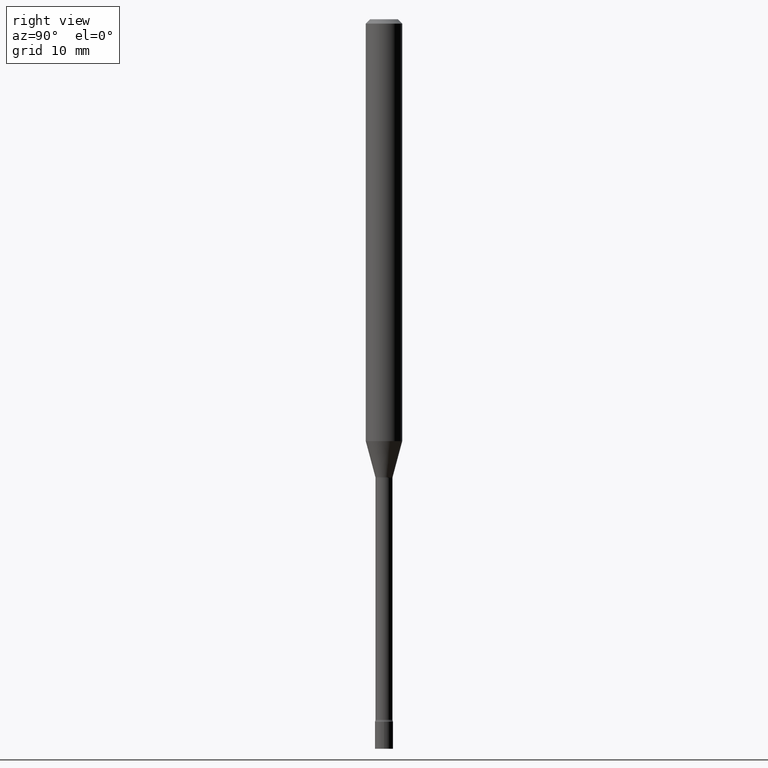
[diagram: clean part render]
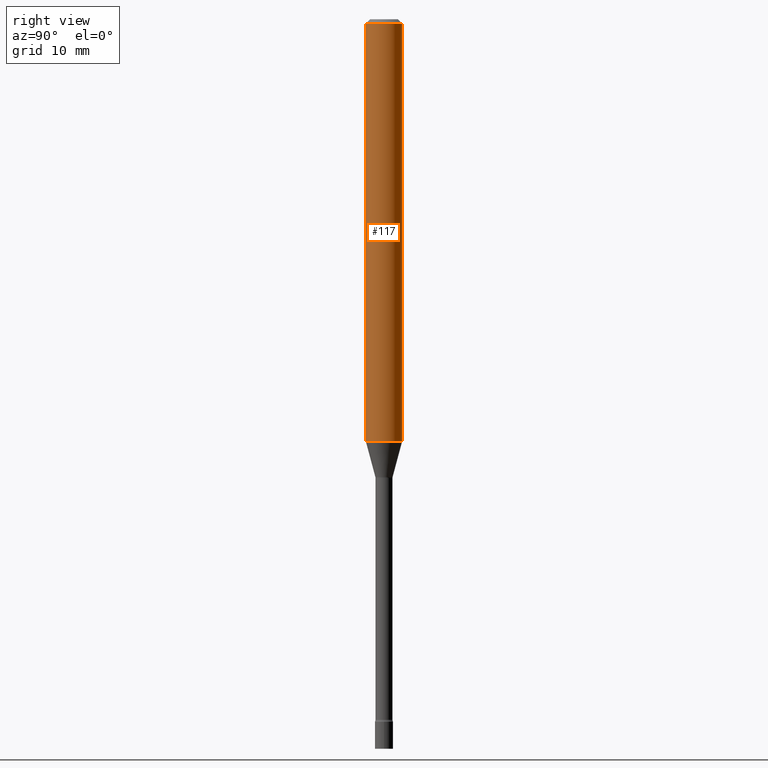
[diagram: same view with one face highlighted and labeled with its STEP entity id]
A machine part, right view. The second image highlights one B-rep face of the part: STEP entity #117.
In plain terms, the highlighted cylindrical surface (edge-blend (fillet) strip) has radius 1.5875 mm, axis along (-0, 0, 1).
Its self-contained STEP definition (entity closure, byte-faithful):
#1 = CARTESIAN_POINT ( 'NONE',  ( 4.440892098500625669E-16, 0.06250000000000000000, -2.182185064623508754E-16 ) ) ;
#13 = CIRCLE ( 'NONE', #235, 0.06250000000000000000 ) ;
#44 = EDGE_CURVE ( 'NONE', #438, #299, #405, .T. ) ;
#64 = EDGE_CURVE ( 'NONE', #271, #438, #279, .T. ) ;
#73 = DIRECTION ( 'NONE',  ( -2.445458496151855897E-29, 3.491496103397614007E-15, 1.000000000000000000 ) ) ;
#81 = CARTESIAN_POINT ( 'NONE',  ( -4.364351673553916201E-16, -0.06250000000000000000, 2.182185064623508754E-16 ) ) ;
#110 = CYLINDRICAL_SURFACE ( 'NONE', #511, 0.06250000000000000000 ) ;
#114 = DIRECTION ( 'NONE',  ( -2.445458496151855897E-29, 3.491496103397614401E-15, 1.000000000000000000 ) ) ;
#117 = ADVANCED_FACE ( 'NONE', ( #309 ), #110, .T. ) ;
#122 = CARTESIAN_POINT ( 'NONE',  ( 4.440892098500977205E-16, 0.06249999999999492767, -1.445536105567578167 ) ) ;
#125 = DIRECTION ( 'NONE',  ( -6.982962677686265922E-15, -1.000000000000000000, 4.370956789862821150E-15 ) ) ;
#150 = ORIENTED_EDGE ( 'NONE', *, *, #512, .T. ) ;
#195 = VERTEX_POINT ( 'NONE', #122 ) ;
#205 = ORIENTED_EDGE ( 'NONE', *, *, #64, .F. ) ;
#206 = DIRECTION ( 'NONE',  ( -6.982962677686265922E-15, -1.000000000000000000, 3.483106191921935554E-15 ) ) ;
#225 = ORIENTED_EDGE ( 'NONE', *, *, #456, .T. ) ;
#234 = CARTESIAN_POINT ( 'NONE',  ( -4.364351673553912750E-16, -0.06250000000000005551, -0.01499999999999981209 ) ) ;
#235 = AXIS2_PLACEMENT_3D ( 'NONE', #327, #489, #125 ) ;
#237 = CARTESIAN_POINT ( 'NONE',  ( -4.364351673553564172E-16, -0.06250000000000507927, -1.445536105567577723 ) ) ;
#263 = DIRECTION ( 'NONE',  ( -6.982962677686265922E-15, -1.000000000000000000, 3.491496103397614007E-15 ) ) ;
#271 = VERTEX_POINT ( 'NONE', #237 ) ;
#277 = DIRECTION ( 'NONE',  ( -2.445458496151855897E-29, 3.491496103397614401E-15, 1.000000000000000000 ) ) ;
#279 = LINE ( 'NONE', #81, #322 ) ;
#299 = VERTEX_POINT ( 'NONE', #329 ) ;
#309 = FACE_OUTER_BOUND ( 'NONE', #362, .T. ) ;
#319 = DIRECTION ( 'NONE',  ( -2.445458496151855897E-29, 3.491496103397614007E-15, 1.000000000000000000 ) ) ;
#322 = VECTOR ( 'NONE', #73, 39.37007874015748143 ) ;
#327 = CARTESIAN_POINT ( 'NONE',  ( 3.534998550854499363E-29, -5.047083679909760712E-15, -1.445536105567577945 ) ) ;
#329 = CARTESIAN_POINT ( 'NONE',  ( 4.440892098500982135E-16, 0.06249999999999995837, -0.01500000000000024751 ) ) ;
#349 = AXIS2_PLACEMENT_3D ( 'NONE', #515, #114, #206 ) ;
#361 = LINE ( 'NONE', #1, #455 ) ;
#362 = EDGE_LOOP ( 'NONE', ( #225, #150, #388, #205 ) ) ;
#388 = ORIENTED_EDGE ( 'NONE', *, *, #44, .F. ) ;
#405 = CIRCLE ( 'NONE', #349, 0.06250000000000000000 ) ;
#438 = VERTEX_POINT ( 'NONE', #234 ) ;
#455 = VECTOR ( 'NONE', #319, 39.37007874015748143 ) ;
#456 = EDGE_CURVE ( 'NONE', #271, #195, #13, .T. ) ;
#468 = CARTESIAN_POINT ( 'NONE',  ( 0.000000000000000000, 0.000000000000000000, 0.000000000000000000 ) ) ;
#489 = DIRECTION ( 'NONE',  ( -2.445458496151855897E-29, 3.491496103397614401E-15, 1.000000000000000000 ) ) ;
#511 = AXIS2_PLACEMENT_3D ( 'NONE', #468, #277, #263 ) ;
#512 = EDGE_CURVE ( 'NONE', #195, #299, #361, .T. ) ;
#515 = CARTESIAN_POINT ( 'NONE',  ( 3.668187744227790975E-31, -5.237244155096431955E-17, -0.01500000000000003067 ) ) ;